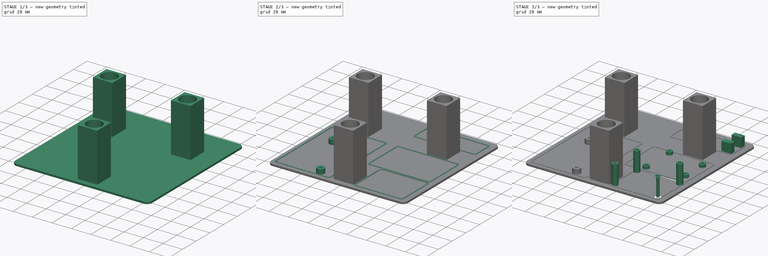
[diagram: build sequence overview — one tinted view per stage of 3, left to right]
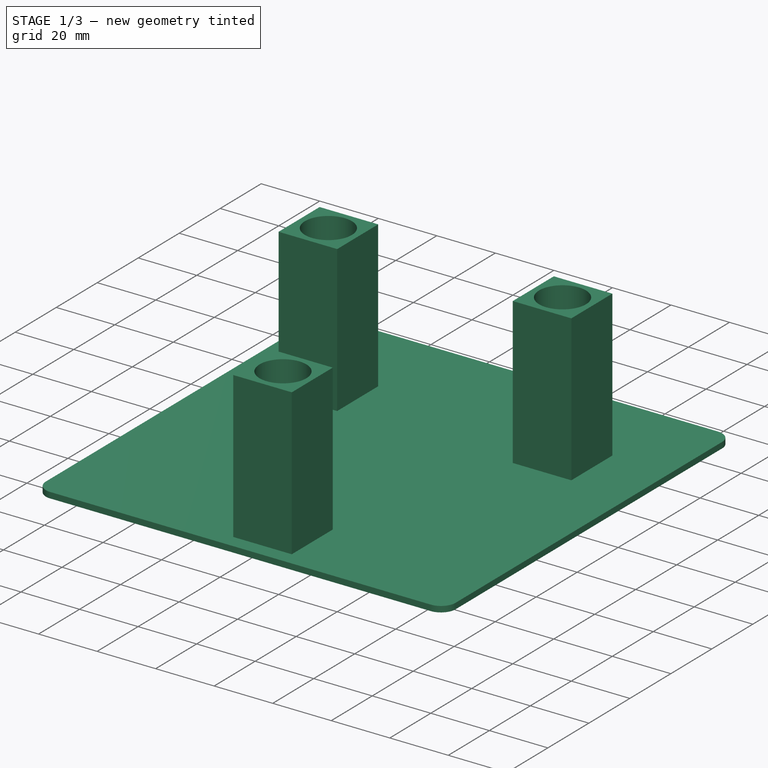
[diagram: stage 1 of 3 — iso view after this stage's code; geometry added in this stage tinted green]
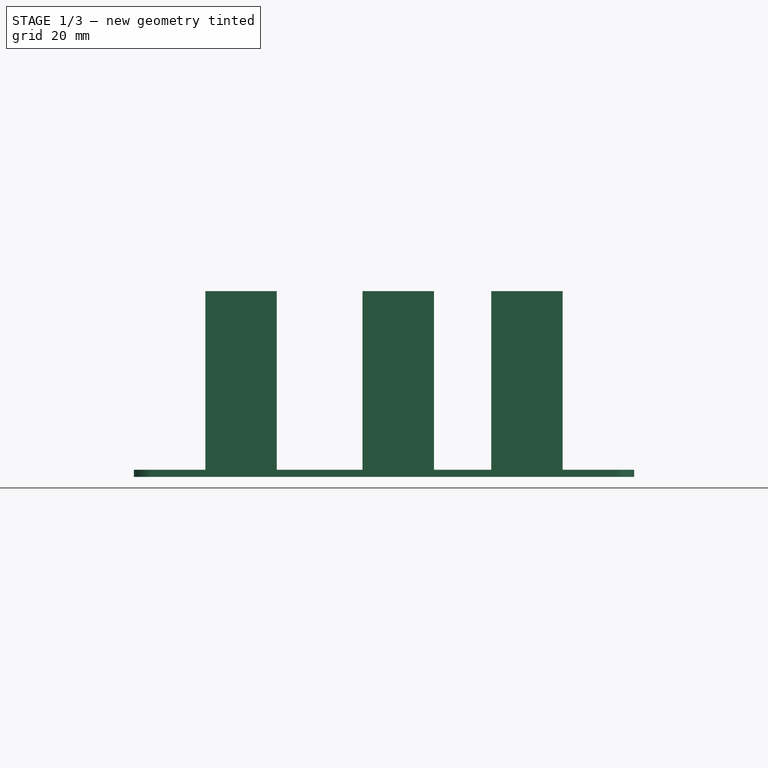
[diagram: stage 1 of 3 — front view after this stage's code; geometry added in this stage tinted green]
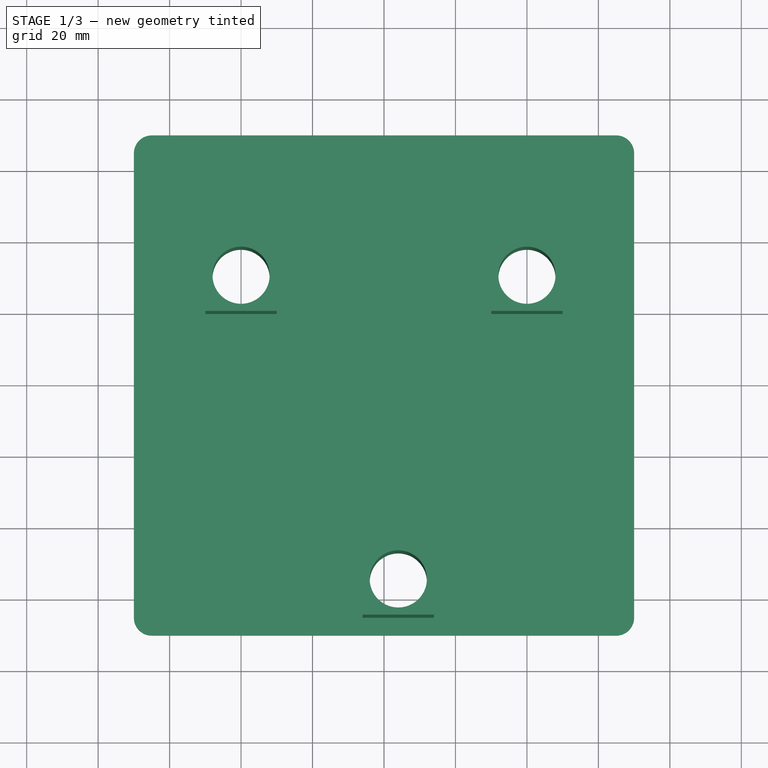
[diagram: stage 1 of 3 — top view after this stage's code; geometry added in this stage tinted green]
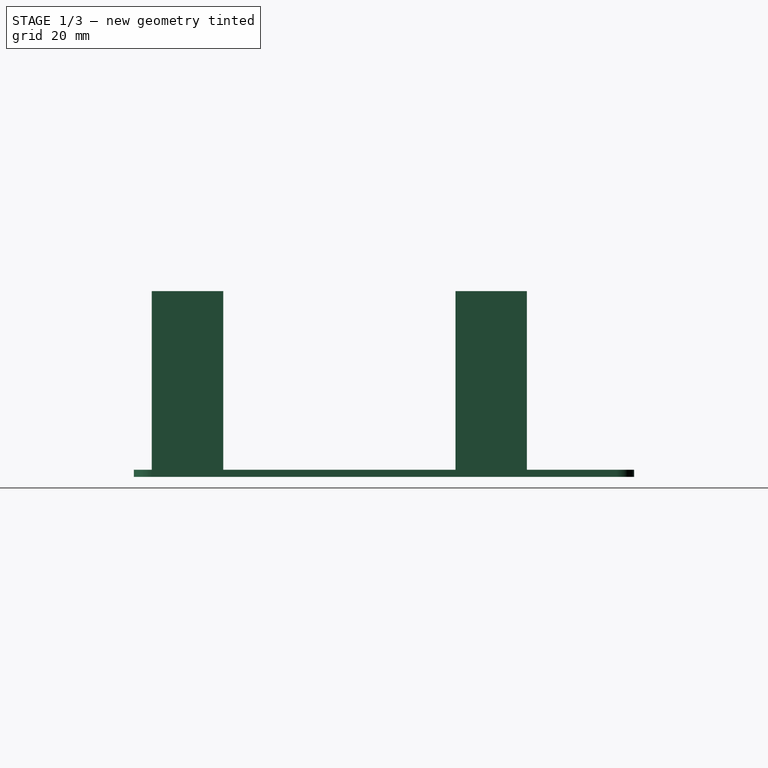
[diagram: stage 1 of 3 — right view after this stage's code; geometry added in this stage tinted green]
FCSTD DOCUMENT  (FreeCAD 0.16R5509 (Git))
Label: case_raspberryB_plate_v2
License: All rights reserved
LicenseURL: http://en.wikipedia.org/wiki/All_rights_reserved
objects: Sketcher::SketchObject×12, PartDesign::Pad×7, PartDesign::Pocket×1
note: 28 computed .brp shape members not serialized (recipe doc carries the construction recipe); baked Part::Feature solids carry a one-line shape summary decoded from their .brp

FEATURE [Sketcher::SketchObject] Sketch  label="SketchBoard"
  sketch-geometry (8):
    g0: LineSegment StartX=-65 StartY=70 StartZ=0 EndX=65 EndY=70 EndZ=0
    g1: LineSegment StartX=70 StartY=65 StartZ=0 EndX=70 EndY=-65 EndZ=0
    g2: LineSegment StartX=65 StartY=-70 StartZ=0 EndX=-65 EndY=-70 EndZ=0
    g3: LineSegment StartX=-70 StartY=-65 StartZ=0 EndX=-70 EndY=65 EndZ=0
    g4: ArcOfCircle CenterX=-65 CenterY=65 CenterZ=0 NormalX=0 NormalY=0 NormalZ=1 Radius=5 StartAngle=1.5708 EndAngle=3.14159
    g5: ArcOfCircle CenterX=65 CenterY=65 CenterZ=0 NormalX=0 NormalY=0 NormalZ=1 Radius=5 StartAngle=0 EndAngle=1.5708
    g6: ArcOfCircle CenterX=65 CenterY=-65 CenterZ=0 NormalX=0 NormalY=0 NormalZ=1 Radius=5 StartAngle=4.71239 EndAngle=6.28319
    g7: ArcOfCircle CenterX=-65 CenterY=-65 CenterZ=0 NormalX=0 NormalY=0 NormalZ=1 Radius=5 StartAngle=3.14159 EndAngle=4.71239
  constraints (18):
    c: Horizontal(g0)
    c: Horizontal(g2)
    c: Tangent(g3,g4) = 1.5708
    c: Tangent(g0,g4) = 1.5708
    c: Tangent(g0,g5) = 1.5708
    c: Tangent(g1,g5) = 1.5708
    c: Tangent(g1,g6) = 1.5708
    c: Tangent(g2,g6) = 1.5708
    c: Tangent(g3,g7) = 1.5708
    c: Tangent(g2,g7) = 1.5708
    c: Equal(g7,g4)
    c: Equal(g4,g5)
    c: Equal(g5,g6)
    c: Symmetric(g3,g1,g-2)
    c: Symmetric(g0,g2,g-1)
    c: DistanceX(g3,g1) = 140
    c: DistanceY(g0,g2) = -140
    c: Radius(g4) = 5
FEATURE [PartDesign::Pad] Pad  label="Board"
  Length = 2
  Length2 = 100
  Sketch = -> Sketch
  Type = 0
FEATURE [Sketcher::SketchObject] Sketch002  label="SketchMountingBolts"
  Placement = pos=(0,0,2) rot=(0,0,1;0rad)
  Support = -> Pad [Face10]
  sketch-geometry (16):
    g0: LineSegment [constr] StartX=-65 StartY=40 StartZ=0 EndX=65 EndY=40 EndZ=0
    g1: LineSegment [constr] StartX=65 StartY=40 StartZ=0 EndX=65 EndY=-65 EndZ=0
    g2: LineSegment [constr] StartX=65 StartY=-65 StartZ=0 EndX=-65 EndY=-65 EndZ=0
    g3: LineSegment [constr] StartX=-65 StartY=-65 StartZ=0 EndX=-65 EndY=40 EndZ=0
    g4: LineSegment StartX=-50 StartY=40 StartZ=0 EndX=-30 EndY=40 EndZ=0
    g5: LineSegment StartX=-30 StartY=40 StartZ=0 EndX=-30 EndY=20 EndZ=0
    g6: LineSegment StartX=-50 StartY=20 StartZ=0 EndX=-50 EndY=40 EndZ=0
    g7: LineSegment StartX=14 StartY=-45 StartZ=0 EndX=-6 EndY=-45 EndZ=0
    g8: LineSegment StartX=-6 StartY=-45 StartZ=0 EndX=-6 EndY=-65 EndZ=0
    g9: LineSegment StartX=-6 StartY=-65 StartZ=0 EndX=14 EndY=-65 EndZ=0
    g10: LineSegment StartX=14 StartY=-65 StartZ=0 EndX=14 EndY=-45 EndZ=0
    g11: LineSegment StartX=30 StartY=40 StartZ=0 EndX=50 EndY=40 EndZ=0
    g12: LineSegment StartX=50 StartY=40 StartZ=0 EndX=50 EndY=20 EndZ=0
    g13: LineSegment StartX=50 StartY=20 StartZ=0 EndX=30 EndY=20 EndZ=0
    g14: LineSegment StartX=30 StartY=20 StartZ=0 EndX=30 EndY=40 EndZ=0
    g15: LineSegment StartX=-50 StartY=20 StartZ=0 EndX=-30 EndY=20 EndZ=0
  constraints (50):
    c: Horizontal(g0)
    c: Horizontal(g2)
    c: Vertical(g1)
    c: Vertical(g3)
    c: DistanceX(g0,g0) = -130
    c: Coincident(g4,g5)
    c: Horizontal(g4)
    c: Vertical(g5)
    c: Vertical(g6)
    c: Distance(g5) = 20
    c: Coincident(g7,g8)
    c: Coincident(g8,g9)
    c: Coincident(g9,g10)
    c: Coincident(g10,g7)
    c: Horizontal(g7)
    c: Horizontal(g9)
    c: Vertical(g8)
    c: Vertical(g10)
    c: PointOnObject(g9,g2)
    c: Coincident(g2,g3)
    c: Coincident(g1,g2)
    c: DistanceY(g-1,g9) = -65
    c: DistanceY(g-1,g0) = 40
    c: DistanceX(g2,g8) = 59
    c: DistanceX(g1,g9) = -51
    c: DistanceY(g6,g2) = -85
    c: Coincident(g4,g6)
    c: Coincident(g11,g12)
    c: Coincident(g12,g13)
    c: Coincident(g13,g14)
    c: Horizontal(g11)
    c: Horizontal(g13)
    c: Vertical(g12)
    c: Vertical(g14)
    c: Coincident(g11,g14)
    c: Coincident(g0,g3)
    c: Coincident(g0,g1)
    c: Symmetric(g4,g11,g-2)
    c: DistanceX(g5,g13) = 60
    c: PointOnObject(g11,g0)
    c: Symmetric(g0,g0,g-2)
    c: DistanceX(g0,g4) = 15
    c: Coincident(g15,g6)
    c: Coincident(g15,g5)
    c: Horizontal(g15)
    c: Equal(g15,g5)
    c: Equal(g13,g14)
    c: Equal(g14,g5)
    c: Equal(g14,g7)
    c: Equal(g7,g10)
FEATURE [PartDesign::Pad] Pad001  label="MountingBolts"
  Length = 50
  Length2 = 100
  Sketch = -> Sketch002
  Type = 0
FEATURE [Sketcher::SketchObject] Sketch003  label="SketchCasMounting"
  Placement = pos=(0,0,3) rot=(1,0,0;3.14159rad)
  sketch-geometry (2):
    g0: Circle CenterX=-70 CenterY=14 CenterZ=0 NormalX=0 NormalY=0 NormalZ=1 Radius=1.9
    g1: Circle CenterX=70 CenterY=14 CenterZ=0 NormalX=0 NormalY=0 NormalZ=1 Radius=1.9
  constraints (5):
    c: Equal(g1,g0)
    c: Radius(g1) = 1.9
    c: Symmetric(g0,g1,g-2)
    c: DistanceX(g1,g0) = -140
    c: DistanceY(g-1,g0) = 14
FEATURE [Sketcher::SketchObject] Sketch004  label="SketchSuckerMounting"
  Placement = pos=(0,0,52) rot=(0,0,1;0rad)
  Support = -> Pad001 [Face24]
  sketch-geometry (5):
    g0: Circle CenterX=-40 CenterY=30 CenterZ=0 NormalX=0 NormalY=0 NormalZ=1 Radius=8
    g1: Circle CenterX=40 CenterY=30 CenterZ=0 NormalX=0 NormalY=0 NormalZ=1 Radius=8
    g2: Circle CenterX=4 CenterY=-55 CenterZ=0 NormalX=0 NormalY=0 NormalZ=1 Radius=8
    g3: LineSegment [constr] StartX=-40 StartY=30 StartZ=0 EndX=0 EndY=30 EndZ=0
    g4: LineSegment [constr] StartX=0 StartY=30 StartZ=0 EndX=40 EndY=30 EndZ=0
  constraints (13):
    c: Symmetric(g0,g1,g-2)
    c: Radius(g1) = 8
    c: Equal(g2,g1)
    c: Coincident(g3,g0)
    c: PointOnObject(g3,g-2)
    c: Horizontal(g3)
    c: Coincident(g4,g3)
    c: Coincident(g4,g1)
    c: DistanceX(g-1,g2) = 4
    c: DistanceY(g-1,g2) = -55
    c: DistanceY(g-1,g1) = 30
    c: Equal(g0,g1)
    c: DistanceX(g0,g1) = 80
FEATURE [Sketcher::SketchObject] Sketch005  label="SketchStatusLEDs"
  Placement = pos=(0,0,3) rot=(0,0,1;0rad)
  sketch-geometry (5):
    g0: Circle CenterX=-54.0259 CenterY=-39.4729 CenterZ=0 NormalX=0 NormalY=0 NormalZ=1 Radius=1.6
    g1: Circle CenterX=-46.5259 CenterY=-39.4729 CenterZ=0 NormalX=0 NormalY=0 NormalZ=1 Radius=1.6
    g2: Circle CenterX=-39.0259 CenterY=-39.4729 CenterZ=0 NormalX=0 NormalY=0 NormalZ=1 Radius=1.6
    g3: LineSegment [constr] StartX=-54.0259 StartY=-39.4729 StartZ=0 EndX=-46.5259 EndY=-39.4729 EndZ=0
    g4: LineSegment [constr] StartX=-46.5259 StartY=-39.4729 StartZ=0 EndX=-39.0259 EndY=-39.4729 EndZ=0
  constraints (11):
    c: Equal(g0,g1)
    c: Equal(g1,g2)
    c: Coincident(g3,g0)
    c: Coincident(g3,g1)
    c: Horizontal(g3)
    c: Coincident(g3,g4)
    c: Coincident(g4,g2)
    c: Horizontal(g4)
    c: Equal(g3,g4)
    c: Radius(g2) = 1.6
    c: DistanceX(g2,g0) = -15
FEATURE [Sketcher::SketchObject] Sketch007  label="Card"
  ExternalGeometry = -> [Pad]
  Placement = pos=(0,0,0) rot=(1,0,0;3.14159rad)
  sketch-geometry (16):
    g0: LineSegment StartX=-66.6201 StartY=28.4021 StartZ=0 EndX=-28.6201 EndY=28.4021 EndZ=0
    g1: LineSegment StartX=-26.6201 StartY=26.4021 StartZ=0 EndX=-26.6201 EndY=-31.5979 EndZ=0
    g2: LineSegment StartX=-28.6201 StartY=-33.5979 StartZ=0 EndX=-66.6201 EndY=-33.5979 EndZ=0
    g3: LineSegment StartX=-68.6201 StartY=-31.5979 StartZ=0 EndX=-68.6201 EndY=26.4021 EndZ=0
    g4: ArcOfCircle CenterX=-66.6201 CenterY=26.4021 CenterZ=0 NormalX=0 NormalY=0 NormalZ=1 Radius=2 StartAngle=1.5708 EndAngle=3.14159
    g5: ArcOfCircle CenterX=-28.6201 CenterY=26.4021 CenterZ=0 NormalX=0 NormalY=0 NormalZ=1 Radius=2 StartAngle=0 EndAngle=1.5708
    g6: ArcOfCircle CenterX=-28.6201 CenterY=-31.5979 CenterZ=0 NormalX=0 NormalY=0 NormalZ=1 Radius=2 StartAngle=4.71239 EndAngle=6.28319
    g7: ArcOfCircle CenterX=-66.6201 CenterY=-31.5979 CenterZ=0 NormalX=0 NormalY=0 NormalZ=1 Radius=2 StartAngle=3.14159 EndAngle=4.71239
    g8: LineSegment StartX=-67.6201 StartY=29.4021 StartZ=0 EndX=-27.6201 EndY=29.4021 EndZ=0
    g9: LineSegment StartX=-25.6201 StartY=27.4021 StartZ=0 EndX=-25.6201 EndY=-32.5979 EndZ=0
    g10: LineSegment StartX=-27.6201 StartY=-34.5979 StartZ=0 EndX=-67.6201 EndY=-34.5979 EndZ=0
    g11: LineSegment StartX=-69.6201 StartY=-32.5979 StartZ=0 EndX=-69.6201 EndY=27.4021 EndZ=0
    g12: ArcOfCircle CenterX=-67.6201 CenterY=27.4021 CenterZ=0 NormalX=0 NormalY=0 NormalZ=1 Radius=2 StartAngle=1.5708 EndAngle=3.14159
    g13: ArcOfCircle CenterX=-27.6201 CenterY=27.4021 CenterZ=0 NormalX=0 NormalY=0 NormalZ=1 Radius=2 StartAngle=0 EndAngle=1.5708
    g14: ArcOfCircle CenterX=-27.6201 CenterY=-32.5979 CenterZ=0 NormalX=0 NormalY=0 NormalZ=1 Radius=2 StartAngle=4.71239 EndAngle=6.28319
    g15: ArcOfCircle CenterX=-67.6201 CenterY=-32.5979 CenterZ=0 NormalX=0 NormalY=0 NormalZ=1 Radius=2 StartAngle=3.14159 EndAngle=4.71239
  constraints (38):
    c: Tangent(g0,g4) = 1.5708
    c: Tangent(g3,g4) = 1.5708
    c: Tangent(g0,g5) = 1.5708
    c: Tangent(g1,g5) = 1.5708
    c: Tangent(g2,g6) = 1.5708
    c: Tangent(g1,g6) = 1.5708
    c: Tangent(g2,g7) = 1.5708
    c: Tangent(g3,g7) = 1.5708
    c: Horizontal(g0)
    c: Vertical(g1)
    c: Vertical(g3)
    c: Horizontal(g2)
    c: DistanceY(g2,g0) = 62
    c: Equal(g4,g7)
    c: Equal(g7,g6)
    c: Equal(g6,g5)
    c: Radius(g5) = 2
    c: Tangent(g8,g12) = 1.5708
    c: Tangent(g11,g12) = 1.5708
    c: Tangent(g8,g13) = 1.5708
    c: Tangent(g9,g13) = 1.5708
    c: Tangent(g10,g14) = 1.5708
    c: Tangent(g9,g14) = 1.5708
    c: Tangent(g10,g15) = 1.5708
    c: Tangent(g11,g15) = 1.5708
    c: Horizontal(g8)
    c: Vertical(g9)
    c: Vertical(g11)
    c: Horizontal(g10)
    c: DistanceY(g10,g8) = 64
    c: Equal(g12,g15)
    c: Equal(g15,g14)
    c: Equal(g14,g13)
    c: Equal(g5,g13) = 2
    c: DistanceX(g11,g9) = 44
    c: DistanceX(g3,g1) = 42
    c: DistanceY(g8,g0) = -1
    c: DistanceX(g11,g3) = 1
FEATURE [Sketcher::SketchObject] Sketch008  label="Antenna"
  ExternalGeometry = -> [Pad]
  Placement = pos=(0,0,0) rot=(1,0,0;3.14159rad)
  sketch-geometry (19):
    g0: LineSegment [constr] StartX=-68.0374 StartY=-0.834209 StartZ=0 EndX=-47.0271 EndY=-0.834209 EndZ=0
    g1: LineSegment [constr] StartX=-47.0271 StartY=-0.834209 StartZ=0 EndX=-26.0168 EndY=-0.834209 EndZ=0
    g2: ArcOfCircle CenterX=-47.0271 CenterY=-0.834209 CenterZ=0 NormalX=0 NormalY=0 NormalZ=1 Radius=19.5811 StartAngle=0.872665 EndAngle=2.26893
    g3: ArcOfCircle CenterX=-47.0271 CenterY=-0.834209 CenterZ=0 NormalX=0 NormalY=0 NormalZ=1 Radius=18.9538 StartAngle=0.913092 EndAngle=2.2285
    g4: LineSegment [constr] StartX=-47.0271 StartY=-0.834209 StartZ=0 EndX=-47.0271 EndY=23.4135 EndZ=0
    g5: LineSegment StartX=-59.6136 StartY=14.1658 StartZ=0 EndX=-58.6136 EndY=14.1658 EndZ=0
    g6: LineSegment StartX=-35.4406 StartY=14.1658 StartZ=0 EndX=-34.4406 EndY=14.1658 EndZ=0
    g7: ArcOfCircle CenterX=-47.0271 CenterY=-0.834209 CenterZ=0 NormalX=0 NormalY=0 NormalZ=1 Radius=11.1125 StartAngle=0.803674 EndAngle=2.33792
    g8: ArcOfCircle CenterX=-47.0271 CenterY=-0.834209 CenterZ=0 NormalX=0 NormalY=0 NormalZ=1 Radius=10.4433 StartAngle=0.872665 EndAngle=2.26893
    g9: LineSegment StartX=-40.3143 StartY=7.16579 StartZ=0 EndX=-39.3143 EndY=7.16579 EndZ=0
    g10: LineSegment StartX=-54.7399 StartY=7.16579 StartZ=0 EndX=-53.7399 EndY=7.16579 EndZ=0
    g11: ArcOfCircle CenterX=-47.0271 CenterY=-0.834209 CenterZ=0 NormalX=0 NormalY=0 NormalZ=1 Radius=10.4433 StartAngle=4.01426 EndAngle=5.41052
    g12: ArcOfCircle CenterX=-47.0271 CenterY=-0.834209 CenterZ=0 NormalX=0 NormalY=0 NormalZ=1 Radius=11.1125 StartAngle=3.94527 EndAngle=5.47951
    g13: ArcOfCircle CenterX=-47.0271 CenterY=-0.834209 CenterZ=0 NormalX=0 NormalY=0 NormalZ=1 Radius=19.5811 StartAngle=4.01426 EndAngle=5.41052
    g14: ArcOfCircle CenterX=-47.0271 CenterY=-0.834209 CenterZ=0 NormalX=0 NormalY=0 NormalZ=1 Radius=20.2384 StartAngle=3.9764 EndAngle=5.44838
    g15: LineSegment StartX=-60.6136 StartY=-15.8342 StartZ=0 EndX=-59.6136 EndY=-15.8342 EndZ=0
    g16: LineSegment StartX=-54.7399 StartY=-8.83421 StartZ=0 EndX=-53.7399 EndY=-8.83421 EndZ=0
    g17: LineSegment StartX=-40.3143 StartY=-8.83421 StartZ=0 EndX=-39.3143 EndY=-8.83421 EndZ=0
    g18: LineSegment StartX=-34.4406 StartY=-15.8342 StartZ=0 EndX=-33.4406 EndY=-15.8342 EndZ=0
  constraints (54):
    c: Horizontal(g0)
    c: Coincident(g0,g1)
    c: Horizontal(g1)
    c: Coincident(g2,g0)
    c: Coincident(g3,g0)
    c: Angle(g2) = 1.39626
    c: Coincident(g4,g0)
    c: Vertical(g4)
    c: Equal(g1,g0)
    c: Coincident(g5,g2)
    c: Horizontal(g5)
    c: Coincident(g6,g3)
    c: Coincident(g6,g2)
    c: Coincident(g5,g3)
    c: Horizontal(g6)
    c: Distance(g5) = 1
    c: DistanceY(g3,g0) = -15
    c: DistanceY(g2,g0) = -15
    c: Coincident(g7,g0)
    c: Coincident(g8,g0)
    c: Coincident(g9,g8)
    c: Coincident(g9,g7)
    c: Coincident(g10,g7)
    c: Coincident(g10,g8)
    c: Horizontal(g10)
    c: Horizontal(g9)
    c: DistanceY(g7,g0) = -8
    c: DistanceY(g7,g0) = -8
    c: Equal(g10,g5)
    c: Angle(g8) = 1.39626
    c: Coincident(g11,g0)
    c: Coincident(g12,g0)
    c: Coincident(g13,g0)
    c: Coincident(g14,g0)
    c: Coincident(g15,g14)
    c: Coincident(g15,g13)
    c: Coincident(g16,g12)
    c: Coincident(g16,g11)
    c: Coincident(g17,g11)
    c: Coincident(g17,g12)
    c: Coincident(g18,g13)
    c: Coincident(g18,g14)
    c: Equal(g15,g5)
    c: Equal(g15,g16)
    c: Equal(g16,g17)
    c: Equal(g17,g18)
    c: Horizontal(g15)
    c: Horizontal(g16)
    c: Horizontal(g17)
    c: Horizontal(g18)
    c: DistanceY(g12,g0) = 8
    c: Angle(g11) = 1.39626
    c: Angle(g13) = 1.39626
    c: DistanceY(g14,g0) = 15
FEATURE [PartDesign::Pocket] Pocket  label="SuckerMounting"
  Length = 5
  Sketch = -> Sketch004
  Type = 1
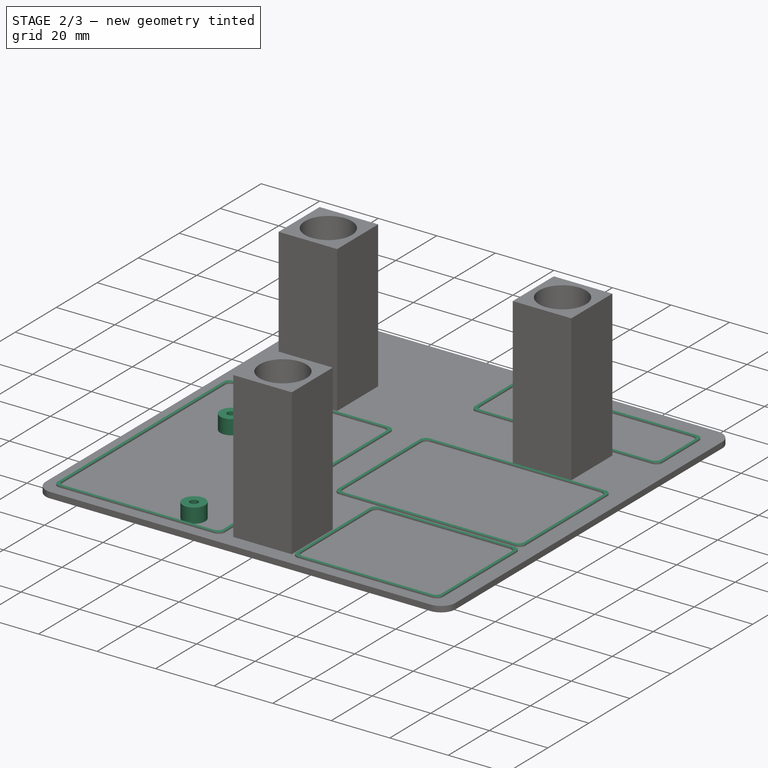
[diagram: stage 2 of 3 — iso view after this stage's code; geometry added in this stage tinted green]
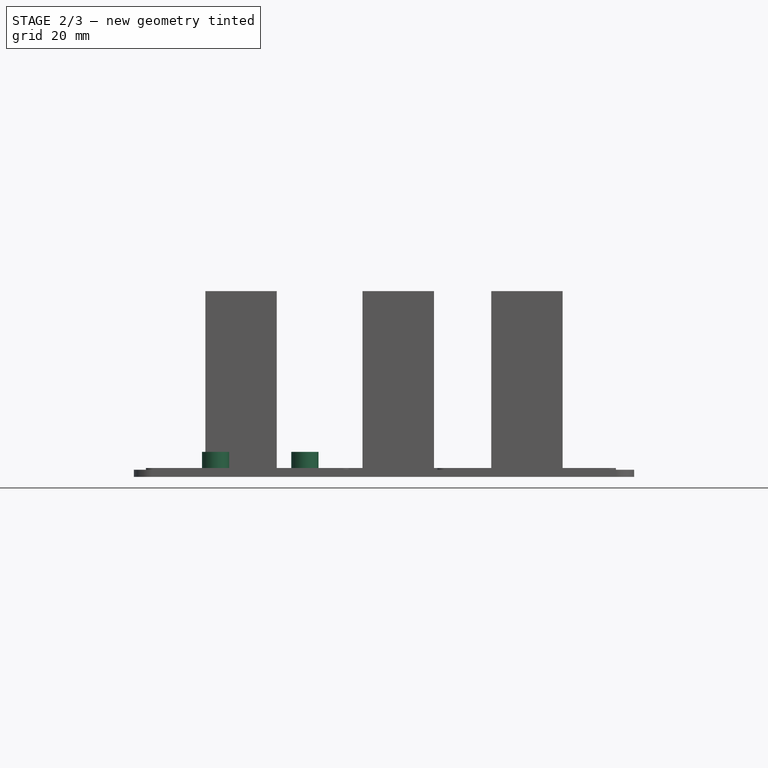
[diagram: stage 2 of 3 — front view after this stage's code; geometry added in this stage tinted green]
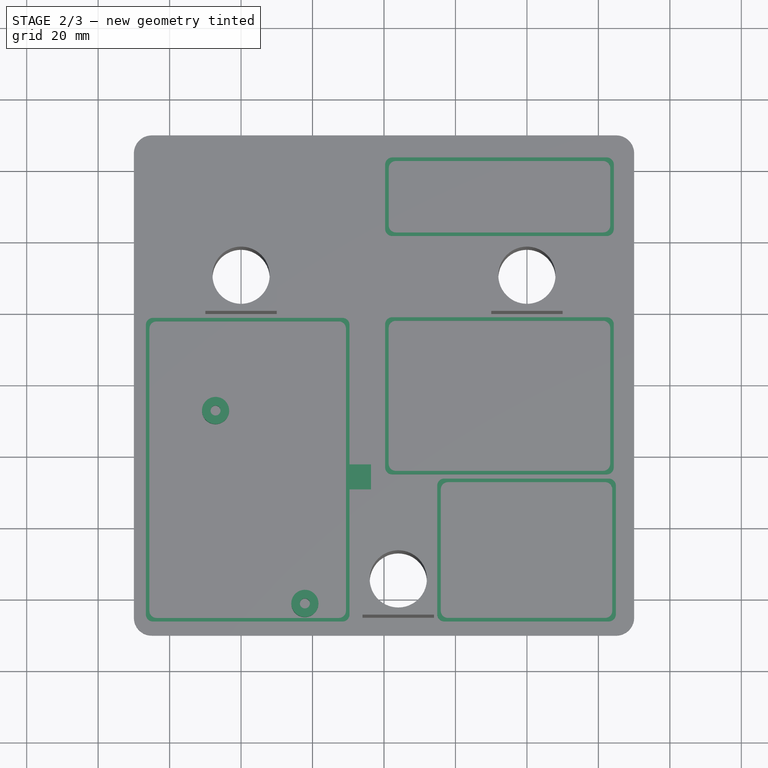
[diagram: stage 2 of 3 — top view after this stage's code; geometry added in this stage tinted green]
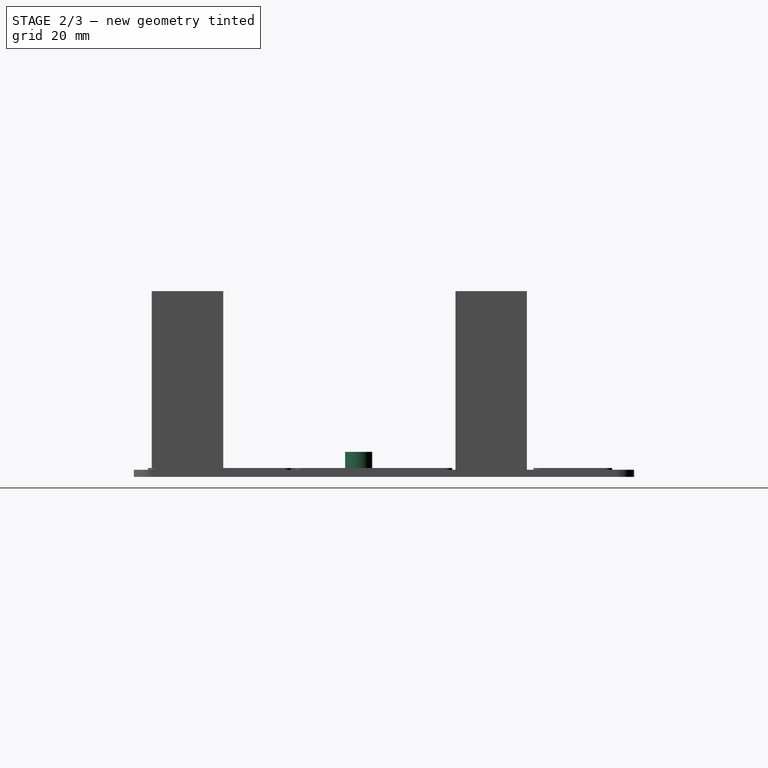
[diagram: stage 2 of 3 — right view after this stage's code; geometry added in this stage tinted green]
FEATURE [Sketcher::SketchObject] Sketch001  label="SketchPositions"
  ExternalGeometry = -> [Pad]
  Placement = pos=(0,0,2) rot=(0,0,1;0rad)
  Support = -> Pocket [Face5]
  sketch-geometry (68):
    g0: LineSegment StartX=3.30748 StartY=18.0998 StartZ=0 EndX=61.3075 EndY=18.0998 EndZ=0
    g1: LineSegment StartX=63.3075 StartY=16.0998 StartZ=0 EndX=63.3075 EndY=-21.9002 EndZ=0
    g2: LineSegment StartX=61.3075 StartY=-23.9002 StartZ=0 EndX=3.30748 EndY=-23.9002 EndZ=0
    g3: LineSegment StartX=1.30748 StartY=-21.9002 StartZ=0 EndX=1.30748 EndY=16.0998 EndZ=0
    g4: ArcOfCircle CenterX=3.30748 CenterY=16.0998 CenterZ=0 NormalX=0 NormalY=0 NormalZ=1 Radius=2 StartAngle=1.5708 EndAngle=3.14159
    g5: ArcOfCircle CenterX=61.3075 CenterY=16.0998 CenterZ=0 NormalX=0 NormalY=0 NormalZ=1 Radius=2 StartAngle=0 EndAngle=1.5708
    g6: ArcOfCircle CenterX=61.3075 CenterY=-21.9002 CenterZ=0 NormalX=0 NormalY=0 NormalZ=1 Radius=2 StartAngle=4.71239 EndAngle=6.28319
    g7: ArcOfCircle CenterX=3.30748 CenterY=-21.9002 CenterZ=0 NormalX=0 NormalY=0 NormalZ=1 Radius=2 StartAngle=3.14159 EndAngle=4.71239
    g8: LineSegment StartX=2.30748 StartY=19.0998 StartZ=0 EndX=62.3075 EndY=19.0998 EndZ=0
    g9: LineSegment StartX=64.3075 StartY=17.0998 StartZ=0 EndX=64.3075 EndY=-22.9002 EndZ=0
    g10: LineSegment StartX=62.3075 StartY=-24.9002 StartZ=0 EndX=2.30748 EndY=-24.9002 EndZ=0
    g11: LineSegment StartX=0.307479 StartY=-22.9002 StartZ=0 EndX=0.307479 EndY=17.0998 EndZ=0
    g12: ArcOfCircle CenterX=2.30748 CenterY=17.0998 CenterZ=0 NormalX=0 NormalY=0 NormalZ=1 Radius=2 StartAngle=1.5708 EndAngle=3.14159
    g13: ArcOfCircle CenterX=62.3075 CenterY=17.0998 CenterZ=0 NormalX=0 NormalY=0 NormalZ=1 Radius=2 StartAngle=0 EndAngle=1.5708
    g14: ArcOfCircle CenterX=62.3075 CenterY=-22.9002 CenterZ=0 NormalX=0 NormalY=0 NormalZ=1 Radius=2 StartAngle=4.71239 EndAngle=6.28319
    g15: ArcOfCircle CenterX=2.30748 CenterY=-22.9002 CenterZ=0 NormalX=0 NormalY=0 NormalZ=1 Radius=2 StartAngle=3.14159 EndAngle=4.71239
    g16: LineSegment StartX=17.8905 StartY=-27.0605 StartZ=0 EndX=61.8905 EndY=-27.0605 EndZ=0
    g17: LineSegment StartX=63.8905 StartY=-29.0605 StartZ=0 EndX=63.8905 EndY=-63.0605 EndZ=0
    g18: LineSegment StartX=61.8905 StartY=-65.0605 StartZ=0 EndX=17.8905 EndY=-65.0605 EndZ=0
    g19: LineSegment StartX=15.8905 StartY=-63.0605 StartZ=0 EndX=15.8905 EndY=-29.0605 EndZ=0
    g20: ArcOfCircle CenterX=17.8905 CenterY=-29.0605 CenterZ=0 NormalX=0 NormalY=0 NormalZ=1 Radius=2 StartAngle=1.5708 EndAngle=3.14159
    g21: ArcOfCircle CenterX=61.8905 CenterY=-29.0605 CenterZ=0 NormalX=0 NormalY=0 NormalZ=1 Radius=2 StartAngle=0 EndAngle=1.5708
    g22: ArcOfCircle CenterX=61.8905 CenterY=-63.0605 CenterZ=0 NormalX=0 NormalY=0 NormalZ=1 Radius=2 StartAngle=4.71239 EndAngle=6.28319
    g23: ArcOfCircle CenterX=17.8905 CenterY=-63.0605 CenterZ=0 NormalX=0 NormalY=0 NormalZ=1 Radius=2 StartAngle=3.14159 EndAngle=4.71239
    g24: LineSegment StartX=16.8905 StartY=-26.0605 StartZ=0 EndX=62.8905 EndY=-26.0605 EndZ=0
    g25: LineSegment StartX=64.8905 StartY=-28.0605 StartZ=0 EndX=64.8905 EndY=-64.0605 EndZ=0
    g26: LineSegment StartX=62.8905 StartY=-66.0605 StartZ=0 EndX=16.8905 EndY=-66.0605 EndZ=0
    g27: LineSegment StartX=14.8905 StartY=-64.0605 StartZ=0 EndX=14.8905 EndY=-28.0605 EndZ=0
    g28: ArcOfCircle CenterX=16.8905 CenterY=-28.0605 CenterZ=0 NormalX=0 NormalY=0 NormalZ=1 Radius=2 StartAngle=1.5708 EndAngle=3.14159
    g29: ArcOfCircle CenterX=62.8905 CenterY=-28.0605 CenterZ=0 NormalX=0 NormalY=0 NormalZ=1 Radius=2 StartAngle=0 EndAngle=1.5708
    g30: ArcOfCircle CenterX=62.8905 CenterY=-64.0605 CenterZ=0 NormalX=0 NormalY=0 NormalZ=1 Radius=2 StartAngle=4.71239 EndAngle=6.28319
    g31: ArcOfCircle CenterX=16.8905 CenterY=-64.0605 CenterZ=0 NormalX=0 NormalY=0 NormalZ=1 Radius=2 StartAngle=3.14159 EndAngle=4.71239
    g32: LineSegment StartX=-63.6474 StartY=17.9257 StartZ=0 EndX=-12.6474 EndY=17.9257 EndZ=0
    g33: LineSegment StartX=-10.6474 StartY=15.9257 StartZ=0 EndX=-10.6474 EndY=-63.0743 EndZ=0
    g34: LineSegment StartX=-12.6474 StartY=-65.0743 StartZ=0 EndX=-63.6474 EndY=-65.0743 EndZ=0
    g35: LineSegment StartX=-65.6474 StartY=-63.0743 StartZ=0 EndX=-65.6474 EndY=15.9257 EndZ=0
    g36: ArcOfCircle CenterX=-63.6474 CenterY=15.9257 CenterZ=0 NormalX=0 NormalY=0 NormalZ=1 Radius=2 StartAngle=1.5708 EndAngle=3.14159
    g37: ArcOfCircle CenterX=-12.6474 CenterY=15.9257 CenterZ=0 NormalX=0 NormalY=0 NormalZ=1 Radius=2 StartAngle=0 EndAngle=1.5708
    g38: ArcOfCircle CenterX=-12.6474 CenterY=-63.0743 CenterZ=0 NormalX=0 NormalY=0 NormalZ=1 Radius=2 StartAngle=4.71239 EndAngle=6.28319
    g39: ArcOfCircle CenterX=-63.6474 CenterY=-63.0743 CenterZ=0 NormalX=0 NormalY=0 NormalZ=1 Radius=2 StartAngle=3.14159 EndAngle=4.71239
    g40: LineSegment StartX=-64.6474 StartY=18.9257 StartZ=0 EndX=-11.6474 EndY=18.9257 EndZ=0
    g41: LineSegment StartX=-11.6474 StartY=-66.0743 StartZ=0 EndX=-64.6474 EndY=-66.0743 EndZ=0
    g42: LineSegment StartX=-66.6474 StartY=-64.0743 StartZ=0 EndX=-66.6474 EndY=16.9257 EndZ=0
    g43: ArcOfCircle CenterX=-64.6474 CenterY=16.9257 CenterZ=0 NormalX=0 NormalY=0 NormalZ=1 Radius=2 StartAngle=1.5708 EndAngle=3.14159
    g44: ArcOfCircle CenterX=-11.6474 CenterY=16.9257 CenterZ=0 NormalX=0 NormalY=0 NormalZ=1 Radius=2 StartAngle=0 EndAngle=1.5708
    g45: ArcOfCircle CenterX=-11.6474 CenterY=-64.0743 CenterZ=0 NormalX=0 NormalY=0 NormalZ=1 Radius=2 StartAngle=4.71239 EndAngle=6.28319
    g46: ArcOfCircle CenterX=-64.6474 CenterY=-64.0743 CenterZ=0 NormalX=0 NormalY=0 NormalZ=1 Radius=2 StartAngle=3.14159 EndAngle=4.71239
    g47: LineSegment StartX=-9.64739 StartY=-64.0743 StartZ=0 EndX=-9.64739 EndY=-29.0743 EndZ=0
    g48: LineSegment StartX=-9.64739 StartY=-29.0743 StartZ=0 EndX=-3.64739 EndY=-29.0743 EndZ=0
    g49: LineSegment StartX=-3.64739 StartY=-29.0743 StartZ=0 EndX=-3.64739 EndY=-22.0743 EndZ=0
    g50: LineSegment StartX=-3.64739 StartY=-22.0743 StartZ=0 EndX=-9.64739 EndY=-22.0743 EndZ=0
    g51: LineSegment StartX=-9.64739 StartY=-22.0743 StartZ=0 EndX=-9.64739 EndY=16.9257 EndZ=0
    g52: LineSegment StartX=3.324 StartY=62.8346 StartZ=0 EndX=61.324 EndY=62.8346 EndZ=0
    g53: LineSegment StartX=63.324 StartY=60.8346 StartZ=0 EndX=63.324 EndY=44.8346 EndZ=0
    g54: LineSegment StartX=61.324 StartY=42.8346 StartZ=0 EndX=3.324 EndY=42.8346 EndZ=0
    g55: LineSegment StartX=1.324 StartY=44.8346 StartZ=0 EndX=1.324 EndY=60.8346 EndZ=0
    g56: ArcOfCircle CenterX=3.324 CenterY=60.8346 CenterZ=0 NormalX=0 NormalY=0 NormalZ=1 Radius=2 StartAngle=1.5708 EndAngle=3.14159
    g57: ArcOfCircle CenterX=61.324 CenterY=60.8346 CenterZ=0 NormalX=0 NormalY=0 NormalZ=1 Radius=2 StartAngle=0 EndAngle=1.5708
    g58: ArcOfCircle CenterX=61.324 CenterY=44.8346 CenterZ=0 NormalX=0 NormalY=0 NormalZ=1 Radius=2 StartAngle=4.71239 EndAngle=6.28319
    g59: ArcOfCircle CenterX=3.324 CenterY=44.8346 CenterZ=0 NormalX=0 NormalY=0 NormalZ=1 Radius=2 StartAngle=3.14159 EndAngle=4.71239
    g60: LineSegment StartX=2.324 StartY=63.8346 StartZ=0 EndX=62.324 EndY=63.8346 EndZ=0
    g61: LineSegment StartX=64.324 StartY=61.8346 StartZ=0 EndX=64.324 EndY=43.8346 EndZ=0
    g62: LineSegment StartX=62.324 StartY=41.8346 StartZ=0 EndX=2.324 EndY=41.8346 EndZ=0
    g63: LineSegment StartX=0.324005 StartY=43.8346 StartZ=0 EndX=0.324005 EndY=61.8346 EndZ=0
    g64: ArcOfCircle CenterX=2.324 CenterY=61.8346 CenterZ=0 NormalX=0 NormalY=0 NormalZ=1 Radius=2 StartAngle=1.5708 EndAngle=3.14159
    g65: ArcOfCircle CenterX=62.324 CenterY=61.8346 CenterZ=0 NormalX=0 NormalY=0 NormalZ=1 Radius=2 StartAngle=0 EndAngle=1.5708
    g66: ArcOfCircle CenterX=62.324 CenterY=43.8346 CenterZ=0 NormalX=0 NormalY=0 NormalZ=1 Radius=2 StartAngle=4.71239 EndAngle=6.28319
    g67: ArcOfCircle CenterX=2.324 CenterY=43.8346 CenterZ=0 NormalX=0 NormalY=0 NormalZ=1 Radius=2 StartAngle=3.14159 EndAngle=4.71239
  constraints (165):
    c: Tangent(g0,g4) = 1.5708
    c: Tangent(g3,g4) = 1.5708
    c: Tangent(g0,g5) = 1.5708
    c: Tangent(g1,g5) = 1.5708
    c: Tangent(g2,g6) = 1.5708
    c: Tangent(g1,g6) = 1.5708
    c: Tangent(g2,g7) = 1.5708
    c: Tangent(g3,g7) = 1.5708
    c: Horizontal(g0)
    c: Vertical(g1)
    c: Vertical(g3)
    c: Horizontal(g2)
    c: DistanceY(g2,g0) = 42
    c: Equal(g4,g7)
    c: Equal(g7,g6)
    c: Equal(g6,g5)
    c: Radius(g5) = 2
    c: Tangent(g8,g12) = 1.5708
    c: Tangent(g11,g12) = 1.5708
    c: Tangent(g8,g13) = 1.5708
    c: Tangent(g9,g13) = 1.5708
    c: Tangent(g10,g14) = 1.5708
    c: Tangent(g9,g14) = 1.5708
    c: Tangent(g10,g15) = 1.5708
    c: Tangent(g11,g15) = 1.5708
    c: Horizontal(g8)
    c: Vertical(g9)
    c: Vertical(g11)
    c: Horizontal(g10)
    c: DistanceY(g10,g8) = 44
    c: Equal(g12,g15)
    c: Equal(g15,g14)
    c: Equal(g14,g13)
    c: Equal(g5,g13) = 2
    c: DistanceX(g11,g9) = 64
    c: DistanceX(g3,g1) = 62
    c: DistanceY(g8,g0) = -1
    c: DistanceX(g11,g3) = 1
    c: Tangent(g16,g20) = 1.5708
    c: Tangent(g19,g20) = 1.5708
    c: Tangent(g16,g21) = 1.5708
    c: Tangent(g17,g21) = 1.5708
    c: Tangent(g18,g22) = 1.5708
    c: Tangent(g17,g22) = 1.5708
    c: Tangent(g18,g23) = 1.5708
    c: Tangent(g19,g23) = 1.5708
    c: Horizontal(g16)
    c: Vertical(g17)
    c: Vertical(g19)
    c: Horizontal(g18)
    c: DistanceY(g18,g16) = 38
    c: Equal(g20,g23)
    c: Equal(g23,g22)
    c: Equal(g22,g21)
    c: Equal(g5,g21) = 2
    c: Tangent(g24,g28) = 1.5708
    c: Tangent(g27,g28) = 1.5708
    c: Tangent(g24,g29) = 1.5708
    c: Tangent(g25,g29) = 1.5708
    c: Tangent(g26,g30) = 1.5708
    c: Tangent(g25,g30) = 1.5708
    c: Tangent(g26,g31) = 1.5708
    c: Tangent(g27,g31) = 1.5708
    c: Horizontal(g24)
    c: Vertical(g25)
    c: Vertical(g27)
    c: Horizontal(g26)
    c: DistanceY(g26,g24) = 40
    c: Equal(g28,g31)
    c: Equal(g31,g30)
    c: Equal(g30,g29)
    c: Equal(g21,g29) = 2
    c: DistanceX(g27,g25) = 50
    c: DistanceX(g19,g17) = 48
    c: DistanceY(g24,g16) = -1
    c: DistanceX(g27,g19) = 1
    c: Tangent(g32,g36) = 1.5708
    c: Tangent(g35,g36) = 1.5708
    c: Tangent(g32,g37) = 1.5708
    c: Tangent(g33,g37) = 1.5708
    c: Tangent(g34,g38) = 1.5708
    c: Tangent(g33,g38) = 1.5708
    c: Tangent(g34,g39) = 1.5708
    c: Tangent(g35,g39) = 1.5708
    c: Horizontal(g32)
    c: Vertical(g33)
    c: Vertical(g35)
    c: Horizontal(g34)
    c: DistanceY(g34,g32) = 83
    c: Equal(g36,g39)
    c: Equal(g39,g38)
    c: Equal(g38,g37)
    c: Tangent(g40,g43) = 1.5708
    c: Tangent(g42,g43) = 1.5708
    c: Tangent(g40,g44) = 1.5708
    c: Tangent(g41,g45) = 1.5708
    c: Tangent(g41,g46) = 1.5708
    c: Tangent(g42,g46) = 1.5708
    c: Horizontal(g40)
    c: Vertical(g42)
    c: Horizontal(g41)
    c: DistanceY(g41,g40) = 85
    c: Equal(g43,g46)
    c: Equal(g46,g45)
    c: Equal(g45,g44)
    c: Equal(g37,g44) = 2
    c: DistanceX(g35,g33) = 55
    c: DistanceY(g40,g32) = -1
    c: DistanceX(g42,g35) = 1
    c: Radius(g43) = 2
    c: Tangent(g45,g47) = -1.5708
    c: Coincident(g47,g48)
    c: Horizontal(g48)
    c: Coincident(g48,g49)
    c: Vertical(g49)
    c: Coincident(g49,g50)
    c: Horizontal(g50)
    c: Coincident(g50,g51)
    c: Coincident(g51,g44)
    c: Vertical(g51)
    c: Distance(g50) = 6
    c: Equal(g50,g48)
    c: DistanceX(g33,g44) = 1
    c: Distance(g49) = 7
    c: Vertical(g47)
    c: DistanceY(g32,g50) = -40
    c: Tangent(g52,g56) = 1.5708
    c: Tangent(g55,g56) = 1.5708
    c: Tangent(g52,g57) = 1.5708
    c: Tangent(g53,g57) = 1.5708
    c: Tangent(g54,g58) = 1.5708
    c: Tangent(g53,g58) = 1.5708
    c: Tangent(g54,g59) = 1.5708
    c: Tangent(g55,g59) = 1.5708
    c: Horizontal(g52)
    c: Vertical(g53)
    c: Vertical(g55)
    c: Horizontal(g54)
    c: DistanceY(g54,g52) = 20
    c: Equal(g56,g59)
    c: Equal(g59,g58)
    c: Equal(g58,g57)
    c: Tangent(g60,g64) = 1.5708
    c: Tangent(g63,g64) = 1.5708
    c: Tangent(g60,g65) = 1.5708
    c: Tangent(g61,g65) = 1.5708
    c: Tangent(g62,g66) = 1.5708
    c: Tangent(g61,g66) = 1.5708
    c: Tangent(g62,g67) = 1.5708
    c: Tangent(g63,g67) = 1.5708
    c: Horizontal(g60)
    c: Vertical(g61)
    c: Vertical(g63)
    c: Horizontal(g62)
    c: DistanceY(g62,g60) = 22
    c: Equal(g64,g67)
    c: Equal(g67,g66)
    c: Equal(g66,g65)
    c: Equal(g57,g65) = 2
    c: DistanceX(g63,g61) = 64
    c: DistanceX(g55,g53) = 62
    c: DistanceY(g60,g52) = -1
    c: DistanceX(g63,g55) = 1
    c: Radius(g65) = 2
    c: Angle(g44) = 1.5708
FEATURE [PartDesign::Pad] Pad002  label="PositionMarks"
  Length = 0.5
  Length2 = 100
  Sketch = -> Sketch001
  Type = 0
FEATURE [Sketcher::SketchObject] Sketch010  label="SketchRaspMounting"
  ExternalGeometry = -> [Pad002]
  Placement = pos=(0,0,2) rot=(0,0,1;0rad)
  Support = -> Pad002 [Face5]
  sketch-geometry (4):
    g0: Circle CenterX=-22.1474 CenterY=-61.0743 CenterZ=0 NormalX=0 NormalY=0 NormalZ=1 Radius=3.8
    g1: Circle CenterX=-47.1474 CenterY=-7.07428 CenterZ=0 NormalX=0 NormalY=0 NormalZ=1 Radius=3.8
    g2: Circle CenterX=-47.1474 CenterY=-7.07428 CenterZ=0 NormalX=0 NormalY=0 NormalZ=1 Radius=1.4
    g3: Circle CenterX=-22.1474 CenterY=-61.0743 CenterZ=0 NormalX=0 NormalY=0 NormalZ=1 Radius=1.4
  constraints (10):
    c: Equal(g1,g0)
    c: Radius(g1) = 3.8
    c: DistanceX(g1,g0) = 25
    c: DistanceY(g0,g1) = 54
    c: Coincident(g2,g1)
    c: Radius(g2) = 1.4
    c: Coincident(g3,g0)
    c: Radius(g3) = 1.4
    c: DistanceX(g-3,g0) = -12.5
    c: DistanceY(g0,g-4) = -5
FEATURE [PartDesign::Pad] Pad003  label="RaspMounting"
  Length = 5
  Length2 = 100
  Sketch = -> Sketch010
  Type = 0
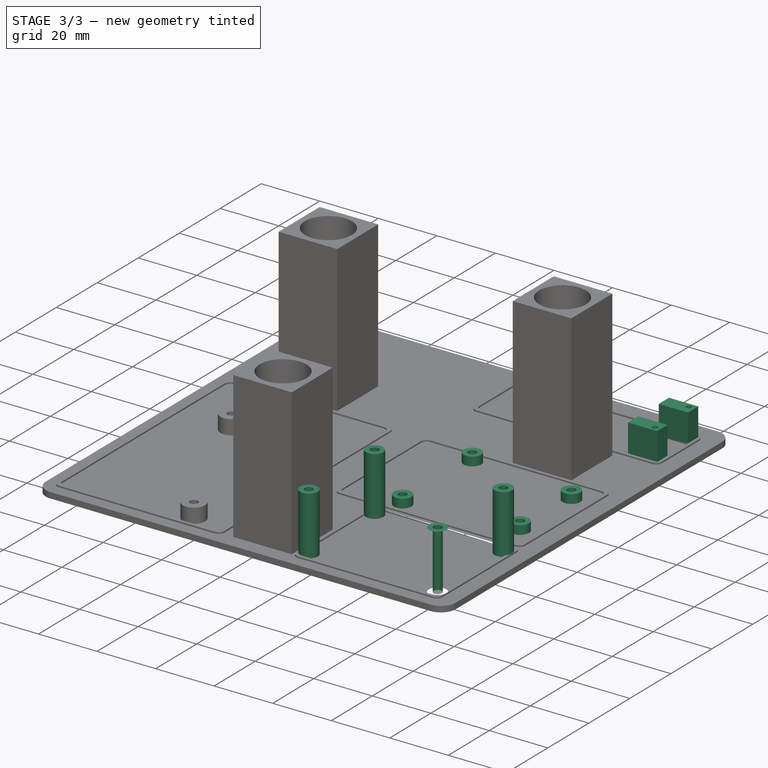
[diagram: stage 3 of 3 — iso view after this stage's code; geometry added in this stage tinted green]
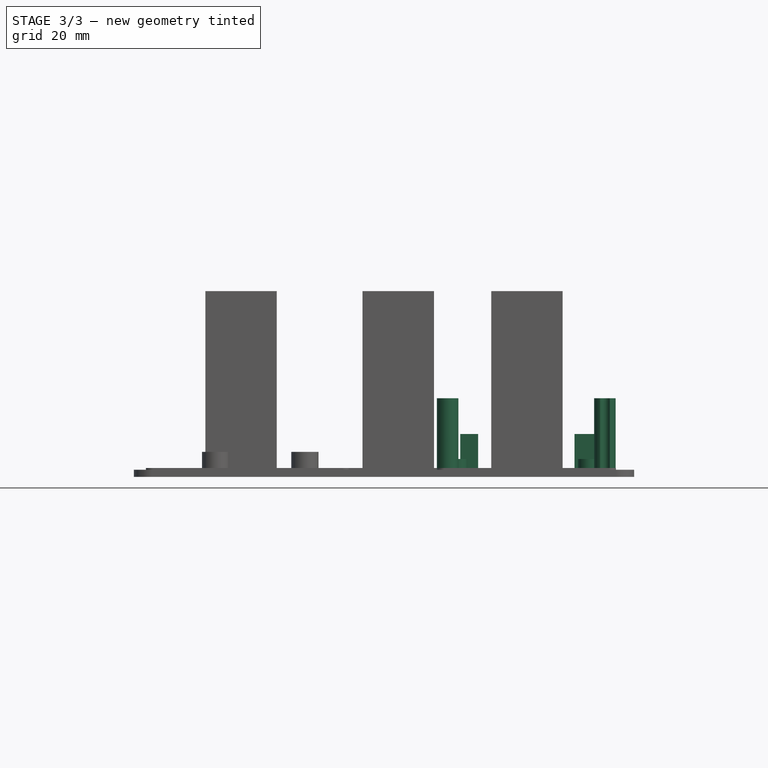
[diagram: stage 3 of 3 — front view after this stage's code; geometry added in this stage tinted green]
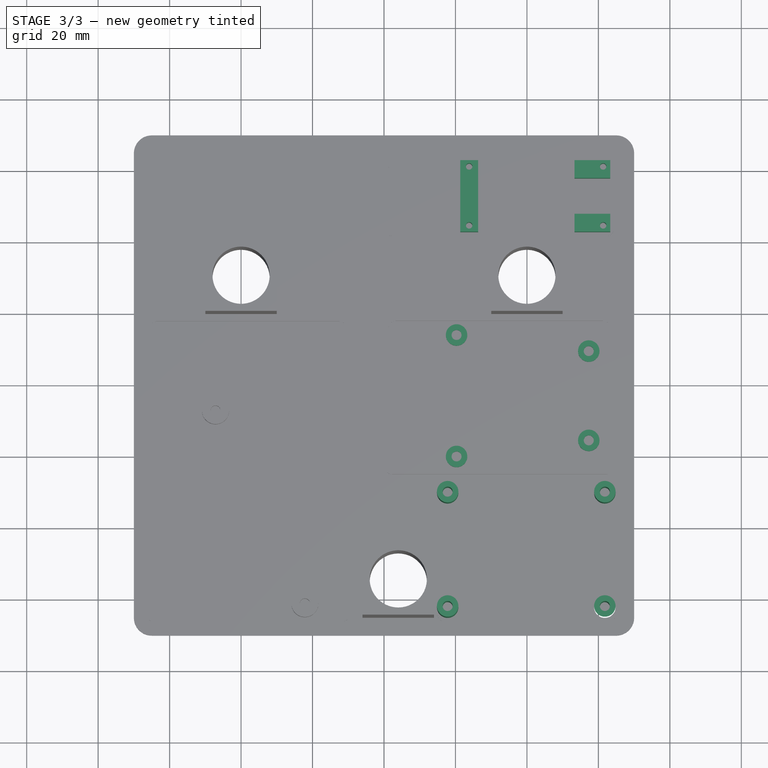
[diagram: stage 3 of 3 — top view after this stage's code; geometry added in this stage tinted green]
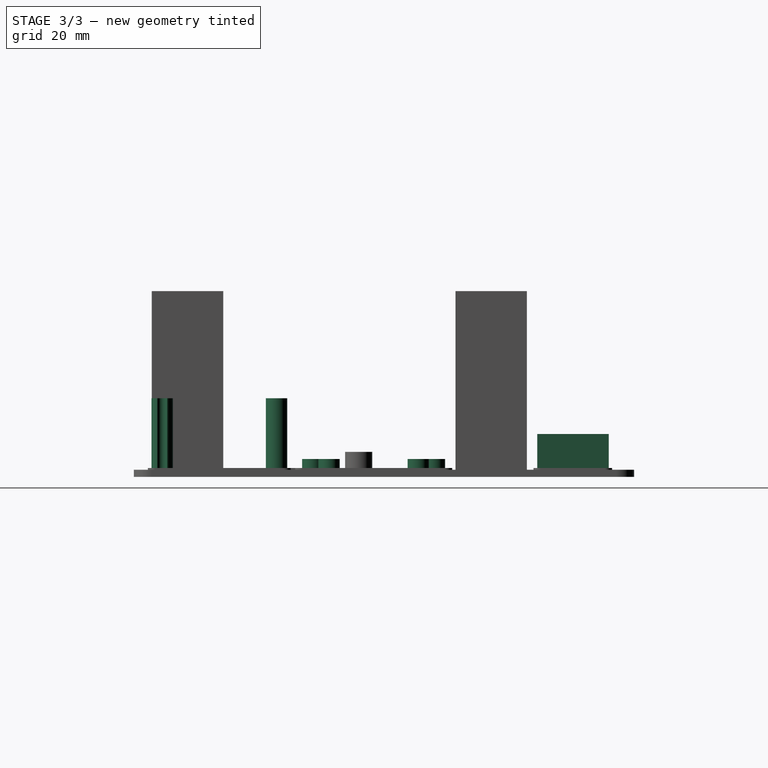
[diagram: stage 3 of 3 — right view after this stage's code; geometry added in this stage tinted green]
FEATURE [Sketcher::SketchObject] Sketch011  label="SketchRelayMounting"
  ExternalGeometry = -> [Pad003]
  Placement = pos=(0,0,2) rot=(0,0,1;0rad)
  Support = -> Pad003 [Face5]
  sketch-geometry (13):
    g0: Circle CenterX=17.8103 CenterY=-30.0605 CenterZ=0 NormalX=0 NormalY=0 NormalZ=1 Radius=3
    g1: Circle CenterX=61.8103 CenterY=-30.0605 CenterZ=0 NormalX=0 NormalY=0 NormalZ=1 Radius=3
    g2: Circle CenterX=61.8103 CenterY=-62.0605 CenterZ=0 NormalX=0 NormalY=0 NormalZ=1 Radius=3
    g3: Circle CenterX=17.8103 CenterY=-62.0605 CenterZ=0 NormalX=0 NormalY=0 NormalZ=1 Radius=3
    g4: LineSegment [constr] StartX=17.8103 StartY=-30.0605 StartZ=0 EndX=61.8103 EndY=-30.0605 EndZ=0
    g5: LineSegment [constr] StartX=61.8103 StartY=-30.0605 StartZ=0 EndX=61.8103 EndY=-62.0605 EndZ=0
    g6: LineSegment [constr] StartX=61.8103 StartY=-62.0605 StartZ=0 EndX=17.8103 EndY=-62.0605 EndZ=0
    g7: LineSegment [constr] StartX=17.8103 StartY=-62.0605 StartZ=0 EndX=17.8103 EndY=-30.0605 EndZ=0
    g8: Circle CenterX=17.8103 CenterY=-30.0605 CenterZ=0 NormalX=0 NormalY=0 NormalZ=1 Radius=1.4
    g9: Circle CenterX=17.8103 CenterY=-62.0605 CenterZ=0 NormalX=0 NormalY=0 NormalZ=1 Radius=1.4
    g10: Circle CenterX=61.8103 CenterY=-62.0605 CenterZ=0 NormalX=0 NormalY=0 NormalZ=1 Radius=1.4
    g11: Circle CenterX=61.8103 CenterY=-30.0605 CenterZ=0 NormalX=0 NormalY=0 NormalZ=1 Radius=1.4
    g12: LineSegment [constr] StartX=17.8103 StartY=-46.0605 StartZ=0 EndX=61.8103 EndY=-46.0605 EndZ=0
  constraints (31):
    c: Equal(g0,g3)
    c: Equal(g3,g2)
    c: Equal(g2,g1)
    c: Coincident(g4,g5)
    c: Coincident(g5,g6)
    c: Coincident(g6,g7)
    c: Coincident(g7,g4)
    c: Horizontal(g4)
    c: Horizontal(g6)
    c: Vertical(g5)
    c: Vertical(g7)
    c: Coincident(g4,g0)
    c: Coincident(g5,g2)
    c: Coincident(g4,g1)
    c: Coincident(g3,g6)
    c: DistanceX(g3,g2) = 44
    c: DistanceY(g1,g2) = -32
    c: Radius(g1) = 3
    c: Coincident(g8,g0)
    c: Radius(g8) = 1.4
    c: Coincident(g9,g3)
    c: Coincident(g10,g2)
    c: Coincident(g11,g1)
    c: Equal(g11,g8)
    c: Equal(g8,g9)
    c: Equal(g9,g10)
    c: PointOnObject(g12,g7)
    c: PointOnObject(g12,g5)
    c: Horizontal(g12)
    c: Symmetric(g-3,g-3,g12)
    c: Symmetric(g1,g2,g12)
FEATURE [PartDesign::Pad] Pad004  label="RelayMounting"
  Length = 20
  Length2 = 100
  Sketch = -> Sketch011
  Type = 0
FEATURE [Sketcher::SketchObject] Sketch012  label="SketchPowerConverterMounting"
  Placement = pos=(0,0,2) rot=(0,0,1;0rad)
  Support = -> Pad004 [Face5]
  sketch-geometry (17):
    g0: LineSegment StartX=21.3289 StartY=62.8956 StartZ=0 EndX=26.3289 EndY=62.8956 EndZ=0
    g1: LineSegment StartX=26.3289 StartY=62.8956 StartZ=0 EndX=26.3289 EndY=42.8956 EndZ=0
    g2: LineSegment StartX=26.3289 StartY=42.8956 StartZ=0 EndX=21.3289 EndY=42.8956 EndZ=0
    g3: LineSegment StartX=21.3289 StartY=42.8956 StartZ=0 EndX=21.3289 EndY=62.8956 EndZ=0
    g4: LineSegment StartX=53.3289 StartY=62.8956 StartZ=0 EndX=63.3289 EndY=62.8956 EndZ=0
    g5: LineSegment StartX=63.3289 StartY=62.8956 StartZ=0 EndX=63.3289 EndY=57.8956 EndZ=0
    g6: LineSegment StartX=63.3289 StartY=57.8956 StartZ=0 EndX=53.3289 EndY=57.8956 EndZ=0
    g7: LineSegment StartX=53.3289 StartY=57.8956 StartZ=0 EndX=53.3289 EndY=62.8956 EndZ=0
    g8: LineSegment StartX=53.3289 StartY=47.8956 StartZ=0 EndX=63.3289 EndY=47.8956 EndZ=0
    g9: LineSegment StartX=63.3289 StartY=47.8956 StartZ=0 EndX=63.3289 EndY=42.8956 EndZ=0
    g10: LineSegment StartX=63.3289 StartY=42.8956 StartZ=0 EndX=53.3289 EndY=42.8956 EndZ=0
    g11: LineSegment StartX=53.3289 StartY=42.8956 StartZ=0 EndX=53.3289 EndY=47.8956 EndZ=0
    g12: LineSegment [constr] StartX=21.3289 StartY=52.8956 StartZ=0 EndX=62.9674 EndY=52.8956 EndZ=0
    g13: Circle CenterX=23.8289 CenterY=61.1456 CenterZ=0 NormalX=0 NormalY=0 NormalZ=1 Radius=0.9
    g14: Circle CenterX=23.8289 CenterY=44.6456 CenterZ=0 NormalX=0 NormalY=0 NormalZ=1 Radius=0.9
    g15: Circle CenterX=61.3289 CenterY=61.1456 CenterZ=0 NormalX=0 NormalY=0 NormalZ=1 Radius=0.9
    g16: Circle CenterX=61.3289 CenterY=44.6456 CenterZ=0 NormalX=0 NormalY=0 NormalZ=1 Radius=0.9
  constraints (46):
    c: Coincident(g0,g1)
    c: Coincident(g1,g2)
    c: Coincident(g2,g3)
    c: Coincident(g3,g0)
    c: Horizontal(g0)
    c: Horizontal(g2)
    c: Vertical(g1)
    c: Coincident(g4,g5)
    c: Coincident(g6,g7)
    c: Coincident(g7,g4)
    c: Horizontal(g4)
    c: Horizontal(g6)
    c: Vertical(g5)
    c: Vertical(g7)
    c: Coincident(g8,g9)
    c: Coincident(g9,g10)
    c: Coincident(g10,g11)
    c: Coincident(g11,g8)
    c: Horizontal(g8)
    c: Horizontal(g10)
    c: Vertical(g9)
    c: Vertical(g11)
    c: Equal(g5,g0)
    c: Distance(g0) = 5
    c: Equal(g7,g11)
    c: Equal(g8,g6)
    c: Distance(g8) = 10
    c: PointOnObject(g12,g3)
    c: Horizontal(g12)
    c: Symmetric(g5,g8,g12)
    c: Symmetric(g0,g2,g12)
    c: DistanceX(g9,g2) = -42
    c: Equal(g16,g14)
    c: Equal(g14,g13)
    c: Equal(g13,g15)
    c: Radius(g13) = 0.9
    c: Symmetric(g13,g14,g12)
    c: DistanceY(g14,g13) = 16.5
    c: DistanceY(g0,g2) = -20
    c: DistanceY(g15,g16) = -16.5
    c: Symmetric(g15,g16,g12)
    c: DistanceX(g13,g15) = 37.5
    c: DistanceX(g14,g2) = -2.5
    c: DistanceY(g5,g8) = -10
    c: Coincident(g6,g5)
    c: DistanceX(g4,g15) = -2
FEATURE [PartDesign::Pad] Pad005  label="PowerConverterMounting"
  Length = 10
  Length2 = 100
  Sketch = -> Sketch012
  Type = 0
FEATURE [Sketcher::SketchObject] Sketch013  label="SketchRFIDMounting"
  ExternalGeometry = -> [Pad005]
  Placement = pos=(0,0,2) rot=(0,0,1;0rad)
  Support = -> Pad005 [Face5]
  sketch-geometry (10):
    g0: Circle CenterX=20.3075 CenterY=14.0998 CenterZ=0 NormalX=0 NormalY=0 NormalZ=1 Radius=3
    g1: Circle CenterX=20.3075 CenterY=-19.9002 CenterZ=0 NormalX=0 NormalY=0 NormalZ=1 Radius=3
    g2: Circle CenterX=57.3075 CenterY=9.5998 CenterZ=0 NormalX=0 NormalY=0 NormalZ=1 Radius=3
    g3: Circle CenterX=57.3075 CenterY=-15.4002 CenterZ=0 NormalX=0 NormalY=0 NormalZ=1 Radius=3
    g4: LineSegment [constr] StartX=20.7568 StartY=-2.9002 StartZ=0 EndX=57.3075 EndY=-2.9002 EndZ=0
    g5: LineSegment [constr] StartX=57.3075 StartY=9.5998 StartZ=0 EndX=57.3075 EndY=-2.9002 EndZ=0
    g6: Circle CenterX=20.3075 CenterY=14.0998 CenterZ=0 NormalX=0 NormalY=0 NormalZ=1 Radius=1.4
    g7: Circle CenterX=57.3075 CenterY=9.5998 CenterZ=0 NormalX=0 NormalY=0 NormalZ=1 Radius=1.4
    g8: Circle CenterX=57.3075 CenterY=-15.4002 CenterZ=0 NormalX=0 NormalY=0 NormalZ=1 Radius=1.4
    g9: Circle CenterX=20.3075 CenterY=-19.9002 CenterZ=0 NormalX=0 NormalY=0 NormalZ=1 Radius=1.4
  constraints (23):
    c: Equal(g2,g0)
    c: Equal(g0,g1)
    c: Equal(g1,g3)
    c: Radius(g0) = 3
    c: DistanceX(g2,g0) = -37
    c: DistanceY(g3,g2) = 25
    c: DistanceY(g0,g1) = -34
    c: Horizontal(g4)
    c: Symmetric(g2,g3,g4)
    c: Symmetric(g0,g1,g4)
    c: Coincident(g5,g2)
    c: Coincident(g5,g4)
    c: Vertical(g5)
    c: Coincident(g6,g0)
    c: Coincident(g7,g2)
    c: Coincident(g8,g3)
    c: Coincident(g9,g1)
    c: Equal(g7,g6)
    c: Equal(g6,g9)
    c: Equal(g9,g8)
    c: Radius(g8) = 1.4
    c: DistanceX(g-3,g4) = -7
    c: Symmetric(g-3,g-3,g4)
FEATURE [PartDesign::Pad] Pad006  label="RFIDMounting"
  Length = 3
  Length2 = 100
  Sketch = -> Sketch013
  Type = 0
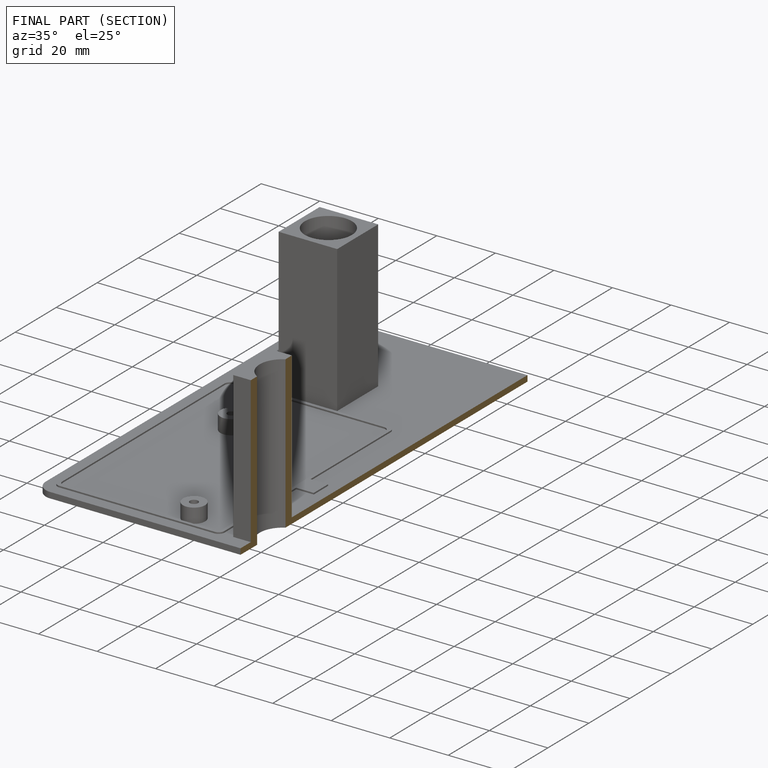
[diagram: finished part — half-section view (interior)]
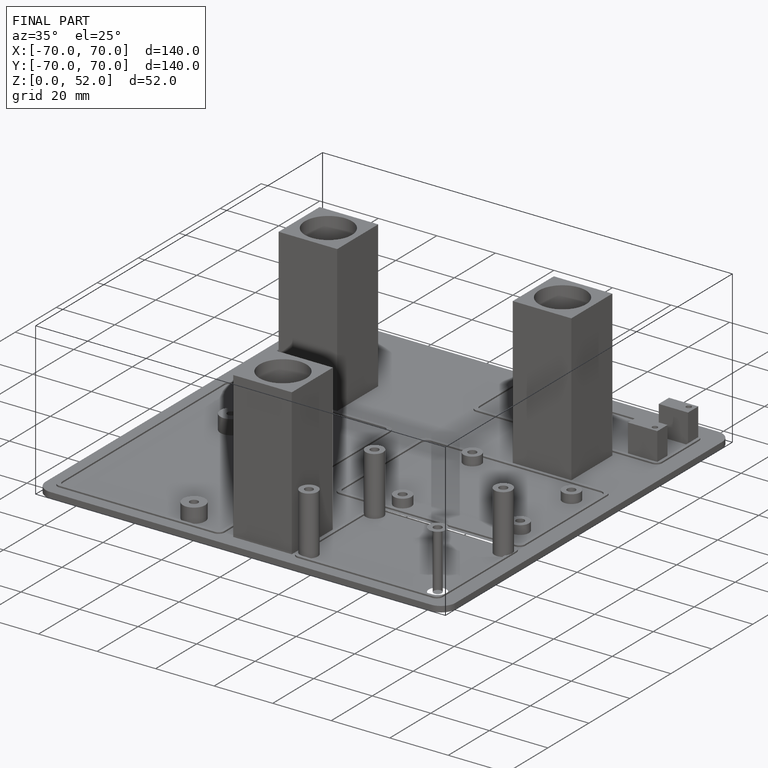
[diagram: finished part — iso view with bounding-box wireframe]
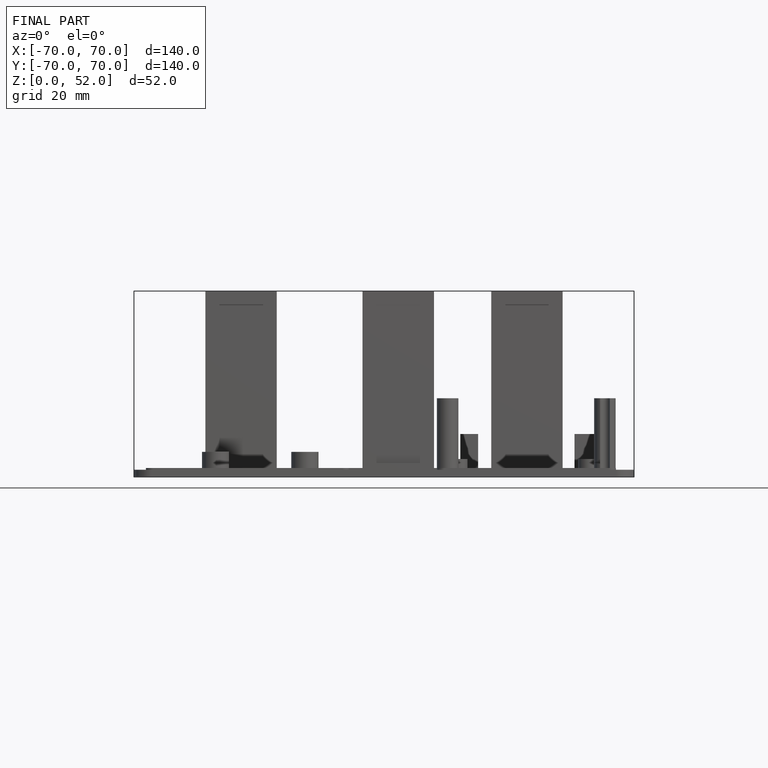
[diagram: finished part — front view with bounding-box wireframe]
